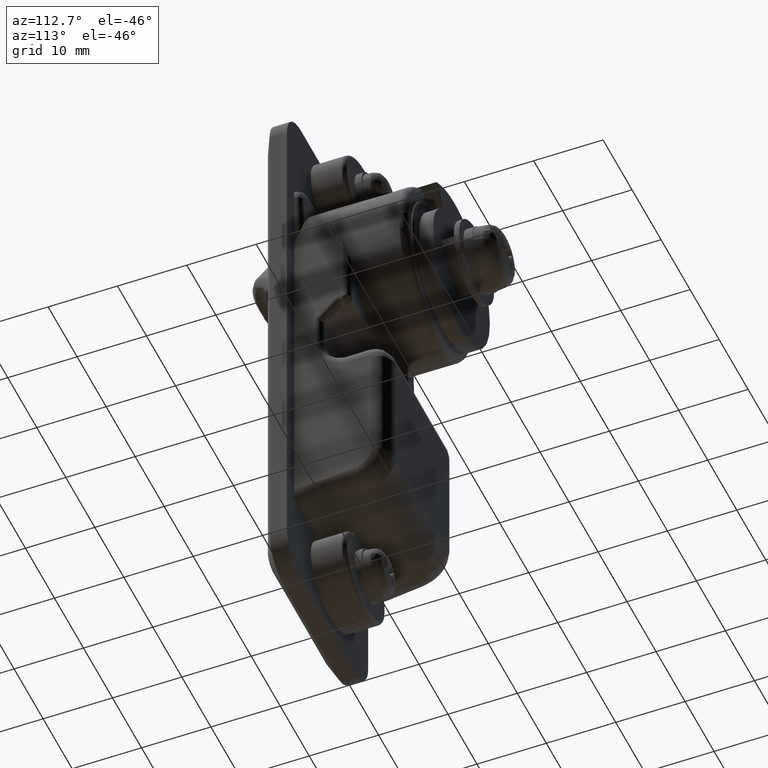
[diagram: clean part render]
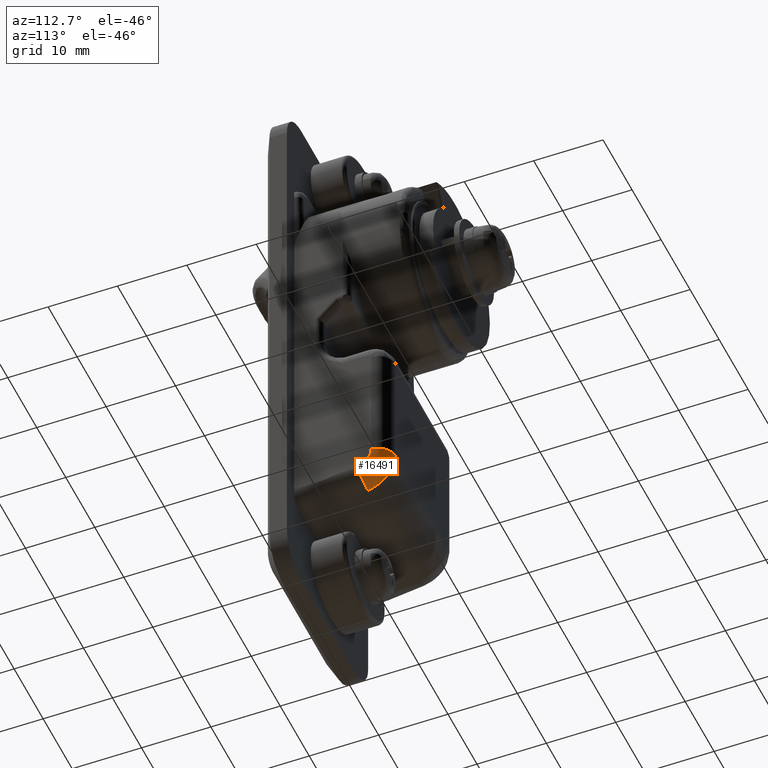
[diagram: same view with one face highlighted and labeled with its STEP entity id]
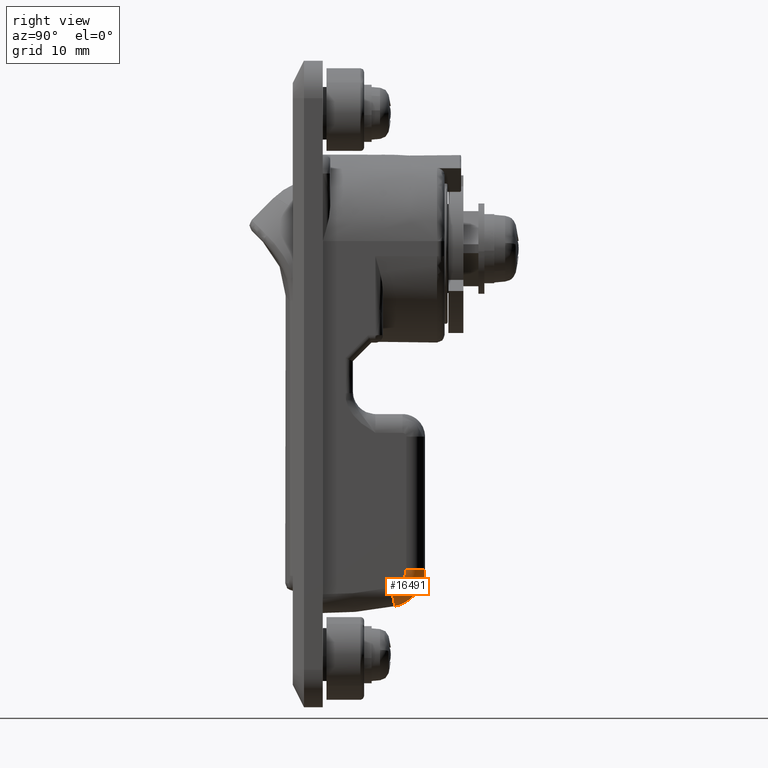
[diagram: same view with one face highlighted and labeled with its STEP entity id]
A machine part, auxiliary view. The second image highlights one B-rep face of the part: STEP entity #16491.
A second angle (right view) of the same face is appended — the face is thin or edge-on in the first view.
In plain terms, the highlighted face is a freeform B-spline surface patch.
Its self-contained STEP definition (entity closure, byte-faithful):
#16381=CARTESIAN_POINT('',(12.100000000000000,-11.500000000000121,-42.641411796515349));
#16382=VERTEX_POINT('',#16381);
#16383=CARTESIAN_POINT('',(14.600000000000000,-9.000000000000119,-42.641411796515349));
#16384=VERTEX_POINT('',#16383);
#16385=CARTESIAN_POINT('',(12.100000000000000,-11.500000000000110,-42.641411796515349));
#16386=CARTESIAN_POINT('',(14.600000000000009,-11.500000000000107,-42.641411796515349));
#16387=CARTESIAN_POINT('',(14.600000000000000,-9.000000000000108,-42.641411796515349));
#16395=(BOUNDED_CURVE()B_SPLINE_CURVE(2,(#16385,#16386,#16387),.UNSPECIFIED.,.F.,.U.)CURVE()GEOMETRIC_REPRESENTATION_ITEM()QUASI_UNIFORM_CURVE()RATIONAL_B_SPLINE_CURVE((1.0,0.707106781186548,1.0))REPRESENTATION_ITEM(''));
#16396=EDGE_CURVE('',#16382,#16384,#16395,.T.);
#16412=CARTESIAN_POINT('',(14.590447123227555,-9.000000000000117,-42.332482176262133));
#16413=CARTESIAN_POINT('',(14.590447123227554,-11.500000000000121,-42.332482176262140));
#16414=CARTESIAN_POINT('',(12.095223561613775,-11.500000000000124,-42.486946986388745));
#16415=CARTESIAN_POINT('',(12.005782891107399,-11.500000000000115,-42.492483739247248));
#16416=CARTESIAN_POINT('',(11.916571760700624,-11.493584012219793,-42.498006282610284));
#16417=CARTESIAN_POINT('',(14.600000000000000,-9.000000000000119,-42.486799286963617));
#16418=CARTESIAN_POINT('',(14.600000000000000,-11.500000000000119,-42.486799286963624));
#16419=CARTESIAN_POINT('',(12.100000000000001,-11.500000000000115,-42.564105541739487));
#16420=CARTESIAN_POINT('',(12.010388119242775,-11.500000000000124,-42.566876565293398));
#16421=CARTESIAN_POINT('',(11.921006217978308,-11.493584012219793,-42.569640477306010));
#16422=CARTESIAN_POINT('',(14.600000000000000,-9.000000000000119,-42.641411796515349));
#16423=CARTESIAN_POINT('',(14.599999999999993,-11.500000000000119,-42.641411796515349));
#16424=CARTESIAN_POINT('',(12.100000000000000,-11.500000000000121,-42.641411796515349));
#16425=CARTESIAN_POINT('',(12.010388119242776,-11.500000000000123,-42.641411796515357));
#16426=CARTESIAN_POINT('',(11.921006217978309,-11.493584012219793,-42.641411796515357));
#16427=CARTESIAN_POINT('',(14.599999999999991,-9.000000000000117,-47.012099345854580));
#16428=CARTESIAN_POINT('',(14.599999999999998,-11.500000000000121,-47.012099345854587));
#16429=CARTESIAN_POINT('',(12.100000000000000,-11.500000000000119,-44.826755571184961));
#16430=CARTESIAN_POINT('',(12.010388119242771,-11.500000000000121,-44.748422464885287));
#16431=CARTESIAN_POINT('',(11.921006217978304,-11.493584012219793,-44.670290392286709));
#16432=CARTESIAN_POINT('',(10.268560236991407,-9.000000000000123,-47.596512926614921));
#16433=CARTESIAN_POINT('',(10.268560236991402,-11.500000000000119,-47.596512926614892));
#16434=CARTESIAN_POINT('',(9.934280118495702,-11.500000000000124,-45.118962361565153));
#16435=CARTESIAN_POINT('',(9.922297930448442,-11.500000000000119,-45.030155175243053));
#16436=CARTESIAN_POINT('',(9.910346493430019,-11.493584012219788,-44.941575903249849));
#16444=(BOUNDED_SURFACE()B_SPLINE_SURFACE(2,2,((#16412,#16417,#16422,#16427,#16432),(#16413,#16418,#16423,#16428,#16433),(#16414,#16419,#16424,#16429,#16434),(#16415,#16420,#16425,#16430,#16435),(#16416,#16421,#16426,#16431,#16436)),.UNSPECIFIED.,.F.,.F.,.U.)B_SPLINE_SURFACE_WITH_KNOTS((3,2,3),(3,2,3),(0.0,4.142135623730957,4.349037371917951),(0.0,0.357174802595370,7.864942017982732),.UNSPECIFIED.)GEOMETRIC_REPRESENTATION_ITEM()RATIONAL_B_SPLINE_SURFACE(((0.975799031138991,0.987353463734785,1.0,0.734171476626387,0.950872416551840),(0.689994111993644,0.698164329634893,0.707106781186548,0.519137629676259,0.672368333787046),(0.975799031138991,0.987353463734785,1.0,0.734171476626387,0.950872416551840),(0.961522932337969,0.972908321702459,0.985369837081763,0.723430428313420,0.936960998183229),(0.948673030101975,0.959906263823233,0.972201242088391,0.713762421482041,0.924439344439289)))REPRESENTATION_ITEM('')SURFACE());
#16445=CARTESIAN_POINT('',(10.588505747126421,-9.000000000000119,-47.542723497264298));
#16446=VERTEX_POINT('',#16445);
#16447=CARTESIAN_POINT('',(10.094252873563200,-11.500000000000121,-45.092067646889802));
#16448=VERTEX_POINT('',#16447);
#16449=CARTESIAN_POINT('',(10.588505747126421,-9.000000000000119,-47.542723497264248));
#16450=CARTESIAN_POINT('',(10.588505747126417,-11.500000000000119,-47.542723497264248));
#16451=CARTESIAN_POINT('',(10.094252873563200,-11.500000000000121,-45.092067646889802));
#16459=(BOUNDED_CURVE()B_SPLINE_CURVE(2,(#16449,#16450,#16451),.UNSPECIFIED.,.F.,.U.)CURVE()GEOMETRIC_REPRESENTATION_ITEM()QUASI_UNIFORM_CURVE()RATIONAL_B_SPLINE_CURVE((1.0,0.707106781186548,1.0))REPRESENTATION_ITEM(''));
#16460=EDGE_CURVE('',#16446,#16448,#16459,.T.);
#16461=ORIENTED_EDGE('',*,*,#16460,.F.);
#16462=CARTESIAN_POINT('',(14.600000000000000,-9.000000000000119,-42.641411796515349));
#16463=CARTESIAN_POINT('',(14.599999999999996,-9.000000000000119,-46.733677803858505));
#16464=CARTESIAN_POINT('',(10.588505747126410,-9.000000000000119,-47.542723497264262));
#16472=(BOUNDED_CURVE()B_SPLINE_CURVE(2,(#16462,#16463,#16464),.UNSPECIFIED.,.F.,.U.)CURVE()GEOMETRIC_REPRESENTATION_ITEM()QUASI_UNIFORM_CURVE()RATIONAL_B_SPLINE_CURVE((1.0,0.773854362727665,1.0))REPRESENTATION_ITEM(''));
#16473=EDGE_CURVE('',#16384,#16446,#16472,.T.);
#16474=ORIENTED_EDGE('',*,*,#16473,.F.);
#16475=ORIENTED_EDGE('',*,*,#16396,.F.);
#16476=CARTESIAN_POINT('',(10.094252873563200,-11.500000000000121,-45.092067646889802));
#16477=CARTESIAN_POINT('',(12.100000000000000,-11.500000000000117,-44.687544800186927));
#16478=CARTESIAN_POINT('',(12.100000000000000,-11.500000000000121,-42.641411796515349));
#16486=(BOUNDED_CURVE()B_SPLINE_CURVE(2,(#16476,#16477,#16478),.UNSPECIFIED.,.F.,.U.)CURVE()GEOMETRIC_REPRESENTATION_ITEM()QUASI_UNIFORM_CURVE()RATIONAL_B_SPLINE_CURVE((1.0,0.773854362727665,1.0))REPRESENTATION_ITEM(''));
#16487=EDGE_CURVE('',#16448,#16382,#16486,.T.);
#16488=ORIENTED_EDGE('',*,*,#16487,.F.);
#16489=EDGE_LOOP('',(#16461,#16474,#16475,#16488));
#16490=FACE_OUTER_BOUND('',#16489,.T.);
#16491=ADVANCED_FACE('',(#16490),#16444,.T.);